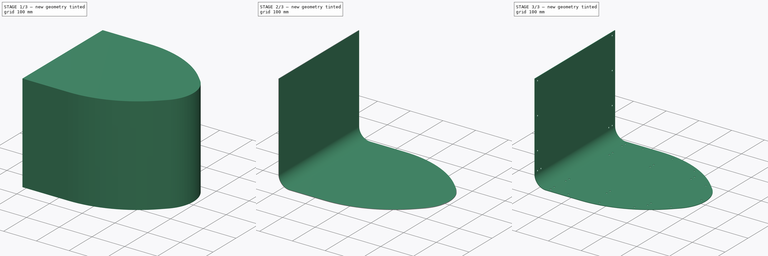
[diagram: build sequence overview — one tinted view per stage of 3, left to right]
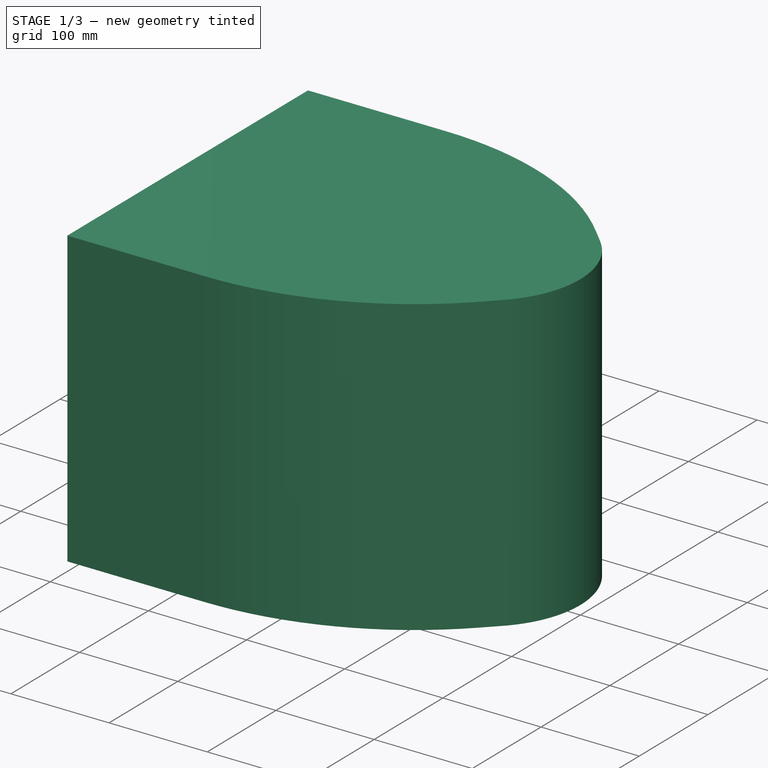
[diagram: stage 1 of 3 — iso view after this stage's code; geometry added in this stage tinted green]
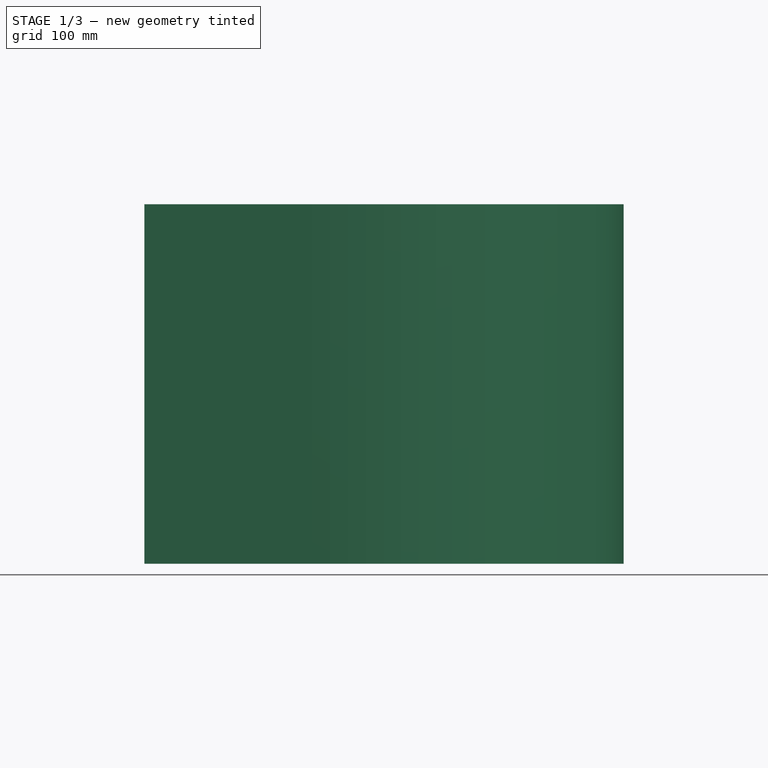
[diagram: stage 1 of 3 — front view after this stage's code; geometry added in this stage tinted green]
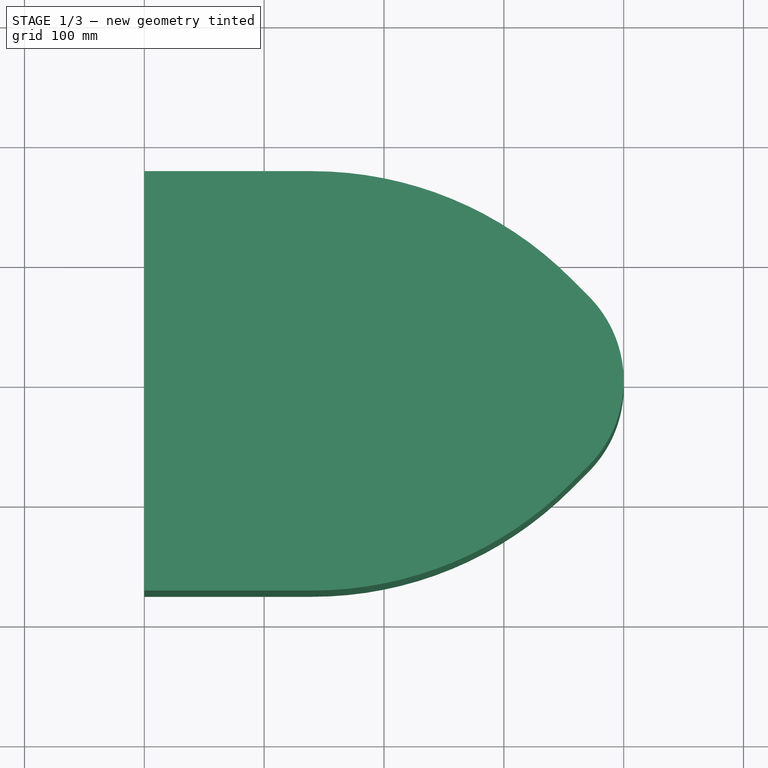
[diagram: stage 1 of 3 — top view after this stage's code; geometry added in this stage tinted green]
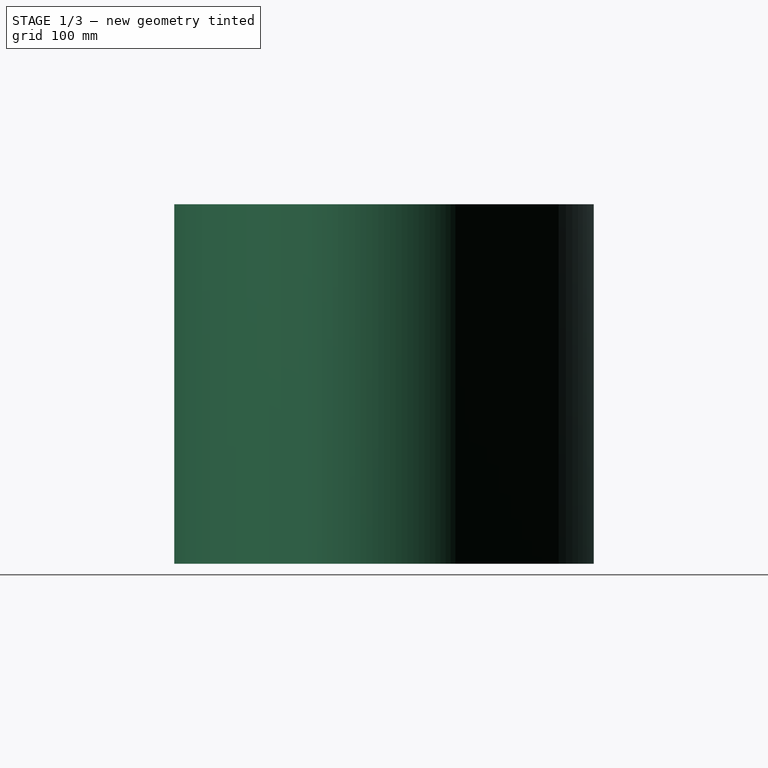
[diagram: stage 1 of 3 — right view after this stage's code; geometry added in this stage tinted green]
FCSTD DOCUMENT  (FreeCAD 0.20R29410 (Git))
Label: Tailbox Floor
License: All rights reserved
LicenseURL: http://en.wikipedia.org/wiki/All_rights_reserved
objects: Sketcher::SketchObject×3, PartDesign::Hole×2, PartDesign::Pad×1, PartDesign::Mirrored×1, TechDraw::DrawSVGTemplate×1, PartDesign::Fillet×1, PartDesign::Thickness×1, PartDesign::Body×1, TechDraw::DrawViewPart×1, TechDraw::DrawPage×1, Spreadsheet::Sheet×1
note: 15 computed .brp shape members not serialized (recipe doc carries the construction recipe); baked Part::Feature solids carry a one-line shape summary decoded from their .brp
EXTERNAL_REF file=Tailbox.FCStd obj=Spreadsheet

FEATURE [Sketcher::SketchObject] Sketch
  FullyConstrained = true
  MapMode = 5
  Support = -> [XY_Plane]
  expr: Constraints[10] = Tailbox#<<dims>>.tip_radius
  expr: Constraints[11] = Tailbox#<<dims>>.length
  expr: Constraints[13] = Tailbox#<<dims>>.taper_angle
  expr: Constraints[14] = Tailbox#<<dims>>.straight_dist
  expr: Constraints[9] = Tailbox#<<dims>>.width / 2
  sketch-geometry (6):
    g0: LineSegment StartX=355.815 StartY=85.6066 StartZ=0 EndX=370.711 EndY=70.7107 EndZ=0
    g1: ArcOfCircle CenterX=300 CenterY=0 CenterZ=0 NormalX=0 NormalY=0 NormalZ=1 AngleXU=0 Radius=100 StartAngle=0 EndAngle=0.785398
    g2: ArcOfCircle CenterX=140 CenterY=-130.208 CenterZ=0 NormalX=0 NormalY=0 NormalZ=1 AngleXU=0 Radius=305.208 StartAngle=0.785398 EndAngle=1.5708
    g3: LineSegment StartX=0 StartY=175 StartZ=0 EndX=0 EndY=0 EndZ=0
    g4: LineSegment StartX=0 StartY=0 StartZ=0 EndX=400 EndY=0 EndZ=0
    g5: LineSegment StartX=140 StartY=175 StartZ=0 EndX=0 EndY=175 EndZ=0
  constraints (17):
    c: PointOnObject(g3,g-2)
    c: PointOnObject(g1,g-1)
    c: Tangent(g1,g0) = 1.5708
    c: PointOnObject(g1,g-1)
    c: Coincident(g3,g-1)
    c: Coincident(g4,g3)
    c: Coincident(g4,g1)
    c: Horizontal(g5)
    c: Tangent(g2,g5) = -1.5708
    c: DistanceY(g5) = 175
    c: Radius(g1) = 100
    c: DistanceX(g4,g4) = 400
    c: Tangent(g0,g2) = 1.5708
    c: Angle(g0,g-1) = 0.785398
    c: DistanceX(g5,g5) = 140
    c: Coincident(g3,g5)
    c: Radius(g2) = 305.208
FEATURE [PartDesign::Pad] Pad
  AlongSketchNormal = false
  Direction = (0,0,1)
  Length = 300
  Length2 = 100
  Profile = -> Sketch
  ReferenceAxis = -> Sketch [N_Axis]
  Type = 0
  expr: Length = Tailbox#<<dims>>.height
FEATURE [PartDesign::Mirrored] Mirrored
  BaseFeature = -> Pad
  MirrorPlane = -> XZ_Plane
  Originals = -> [Pad]
  Refine = true
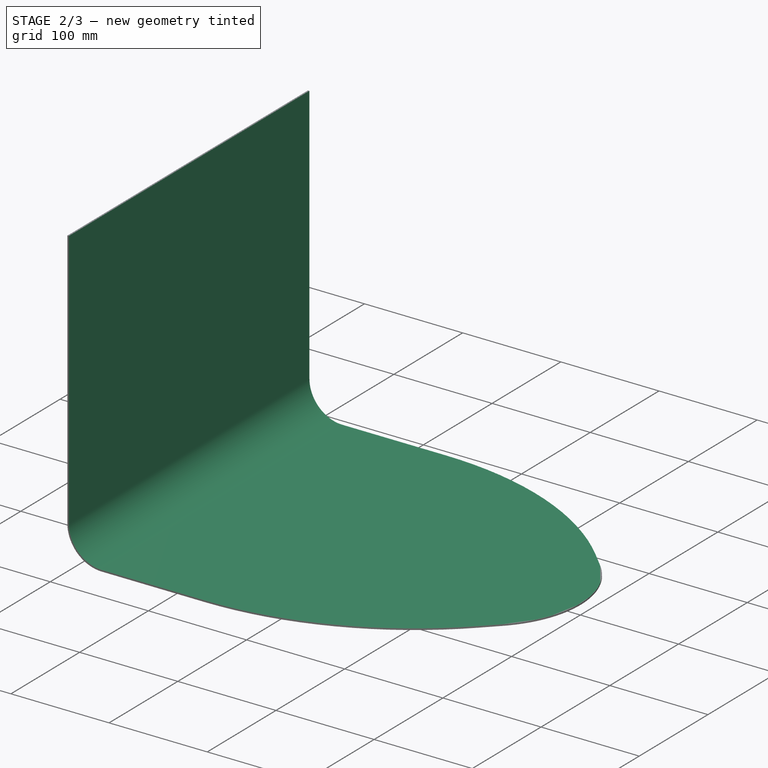
[diagram: stage 2 of 3 — iso view after this stage's code; geometry added in this stage tinted green]
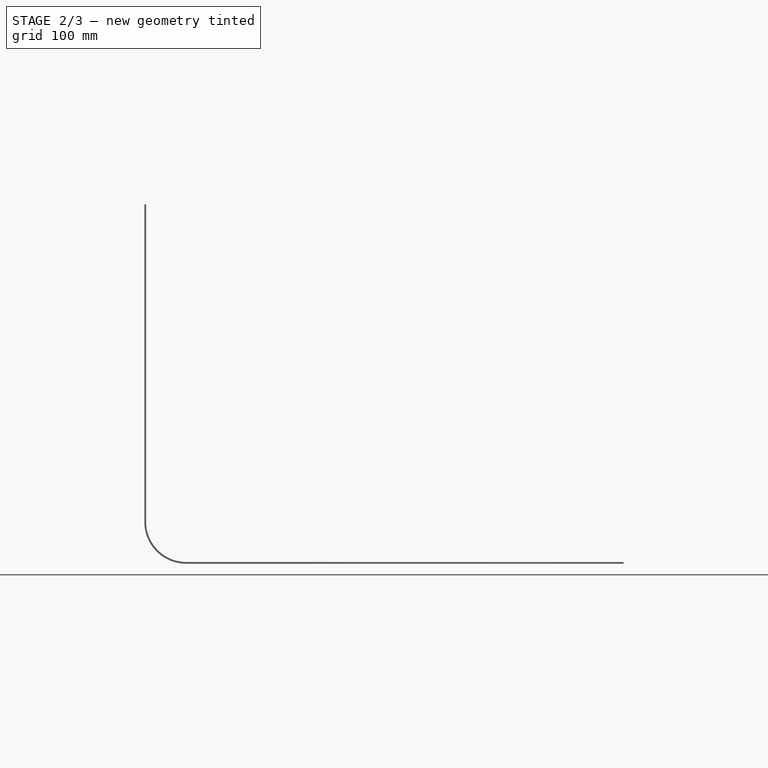
[diagram: stage 2 of 3 — front view after this stage's code; geometry added in this stage tinted green]
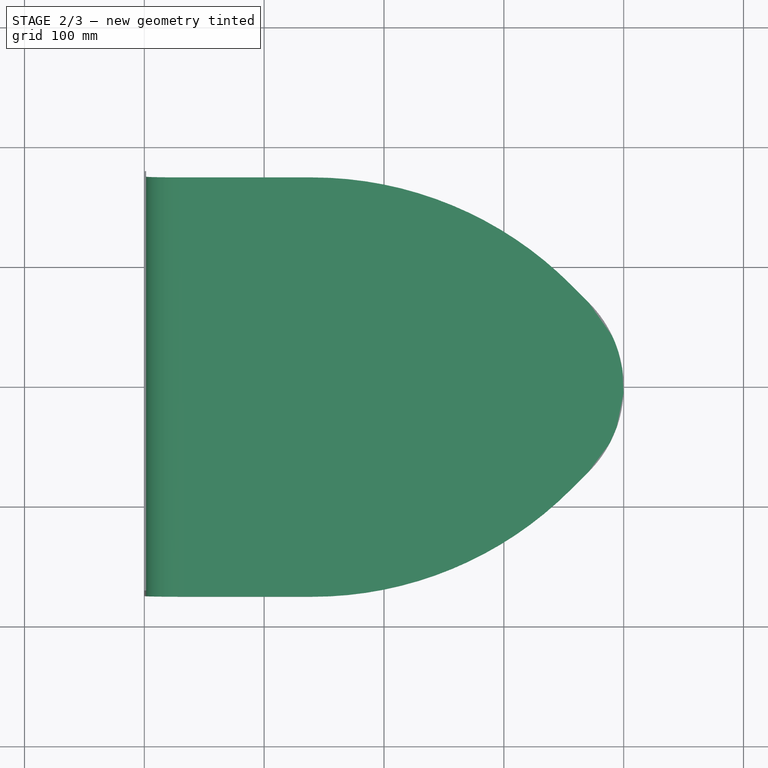
[diagram: stage 2 of 3 — top view after this stage's code; geometry added in this stage tinted green]
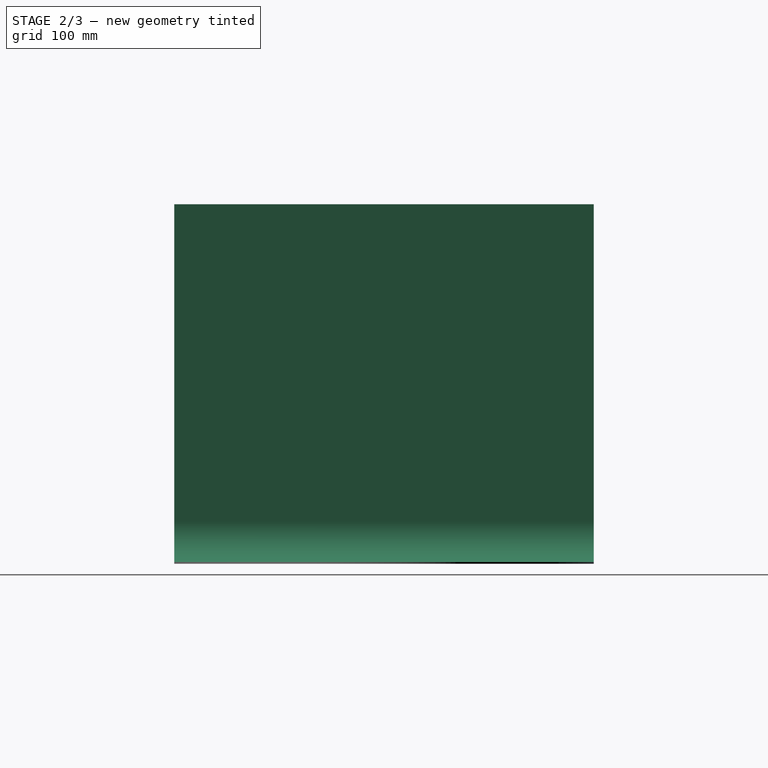
[diagram: stage 2 of 3 — right view after this stage's code; geometry added in this stage tinted green]
FEATURE [TechDraw::DrawSVGTemplate] Template
  EditableTexts = Designed_by_Name=Designed by Name; Drawing_number=Drawing number; FC-Date=Date; FC-SC=Scale; FC-SH=Sheet; FC-Title=Title; Subtitle=Subtitle; Weight=Weight
  Height = 210
  Orientation = 1
  Width = 297
FEATURE [Sketcher::SketchObject] Sketch002
  ExternalGeometry = -> [Sketch]
  FullyConstrained = false
  MapMode = 5
  Support = -> [XY_Plane]
  expr: Constraints[108] = Tailbox#<<dims>>.rack_mount_bolt_width
  expr: Constraints[109] = Tailbox#<<dims>>.rack_outer_width - Tailbox#<<dims>>.rack_tube_diameter
  expr: Constraints[110] = Tailbox#<<dims>>.rack_length
  expr: Constraints[113] = Tailbox#<<dims>>.corner_radius + 10
  expr: Constraints[41] = Tailbox#<<dims>>.bolt_inset
  expr: Constraints[51] = Tailbox#<<dims>>.corner_radius + Tailbox#<<dims>>.corner_bolt_offset + Tailbox#<<dims>>.thickness
  sketch-geometry (48):
    g0: Circle CenterX=41.5 CenterY=163 CenterZ=0 NormalX=0 NormalY=0 NormalZ=1 AngleXU=0 Radius=2.56613
    g1: Circle CenterX=41.5 CenterY=148 CenterZ=0 NormalX=0 NormalY=0 NormalZ=1 AngleXU=0 Radius=2.56613
    g2: Circle CenterX=41.5 CenterY=-148 CenterZ=0 NormalX=0 NormalY=0 NormalZ=1 AngleXU=0 Radius=2.56613
    g3: Circle CenterX=41.5 CenterY=-163 CenterZ=0 NormalX=0 NormalY=0 NormalZ=1 AngleXU=0 Radius=2.56613
    g4: LineSegment StartX=41.5 StartY=163 StartZ=0 EndX=41.5 EndY=148 EndZ=0
    g5: LineSegment StartX=41.5 StartY=-148 StartZ=0 EndX=41.5 EndY=-163 EndZ=0
    g6: Circle CenterX=95.0399 CenterY=163 CenterZ=0 NormalX=0 NormalY=0 NormalZ=1 AngleXU=0 Radius=2.56613
    g7: Circle CenterX=188.025 CenterY=159.04 CenterZ=0 NormalX=0 NormalY=0 NormalZ=1 AngleXU=0 Radius=2.56613
    g8: Circle CenterX=274.668 CenterY=130.244 CenterZ=0 NormalX=0 NormalY=0 NormalZ=1 AngleXU=0 Radius=2.56613
    g9: Circle CenterX=348.293 CenterY=76.1579 CenterZ=0 NormalX=0 NormalY=0 NormalZ=1 AngleXU=0 Radius=2.56613
    g10: LineSegment StartX=0 StartY=175 StartZ=0 EndX=95.0399 EndY=175 EndZ=0
    g11: LineSegment StartX=95.0399 StartY=175 StartZ=0 EndX=189.99 EndY=170.878 EndZ=0
    g12: LineSegment StartX=189.99 StartY=170.878 StartZ=0 EndX=280.18 EndY=140.904 EndZ=0
    g13: LineSegment StartX=280.18 StartY=140.904 StartZ=0 EndX=356.778 EndY=84.6431 EndZ=0
    g14: LineSegment StartX=356.778 StartY=84.6431 StartZ=0 EndX=400 EndY=0 EndZ=0
    g15: LineSegment StartX=95.0399 StartY=163 StartZ=0 EndX=95.0399 EndY=175 EndZ=0
    g16: LineSegment StartX=188.025 StartY=159.04 StartZ=0 EndX=189.99 EndY=170.878 EndZ=0
    g17: LineSegment StartX=274.668 StartY=130.244 StartZ=0 EndX=280.18 EndY=140.904 EndZ=0
    g18: LineSegment StartX=348.293 StartY=76.1579 StartZ=0 EndX=356.778 EndY=84.6431 EndZ=0
    g19: LineSegment StartX=189.99 StartY=170.878 StartZ=0 EndX=215.304 EndY=166.675 EndZ=0
    g20: LineSegment StartX=280.18 StartY=140.904 StartZ=0 EndX=254.943 EndY=153.952 EndZ=0
    g21: Circle CenterX=95.0399 CenterY=-163 CenterZ=0 NormalX=0 NormalY=0 NormalZ=1 AngleXU=0 Radius=2.56613
    g22: Circle CenterX=188.025 CenterY=-159.04 CenterZ=0 NormalX=0 NormalY=0 NormalZ=1 AngleXU=0 Radius=2.56613
    g23: Circle CenterX=274.668 CenterY=-130.244 CenterZ=0 NormalX=0 NormalY=0 NormalZ=1 AngleXU=0 Radius=2.56613
    g24: Circle CenterX=348.293 CenterY=-76.1579 CenterZ=0 NormalX=0 NormalY=0 NormalZ=1 AngleXU=0 Radius=2.56613
    g25: Circle CenterX=388 CenterY=0 CenterZ=0 NormalX=0 NormalY=0 NormalZ=1 AngleXU=0 Radius=2.56613
    g26: LineSegment StartX=388 StartY=0 StartZ=0 EndX=400 EndY=0 EndZ=0
    g27: LineSegment StartX=41.5 StartY=163 StartZ=0 EndX=95.0399 EndY=163 EndZ=0
    g28: Circle CenterX=45 CenterY=102.5 CenterZ=0 NormalX=0 NormalY=0 NormalZ=1 AngleXU=0 Radius=2.56613
    g29: Circle CenterX=45 CenterY=87.5 CenterZ=0 NormalX=0 NormalY=0 NormalZ=1 AngleXU=0 Radius=2.56613
    g30: Circle CenterX=45 CenterY=-87.5 CenterZ=0 NormalX=0 NormalY=0 NormalZ=1 AngleXU=0 Radius=2.56613
    g31: Circle CenterX=45 CenterY=-102.5 CenterZ=0 NormalX=0 NormalY=0 NormalZ=1 AngleXU=0 Radius=2.56613
    g32: Circle CenterX=170 CenterY=102.5 CenterZ=0 NormalX=0 NormalY=0 NormalZ=1 AngleXU=0 Radius=2.56613
    g33: Circle CenterX=170 CenterY=87.5 CenterZ=0 NormalX=0 NormalY=0 NormalZ=1 AngleXU=0 Radius=2.56613
    g34: Circle CenterX=170 CenterY=-87.5 CenterZ=0 NormalX=0 NormalY=0 NormalZ=1 AngleXU=0 Radius=2.56613
    g35: Circle CenterX=170 CenterY=-102.5 CenterZ=0 NormalX=0 NormalY=0 NormalZ=1 AngleXU=0 Radius=2.56613
    g36: Circle CenterX=295 CenterY=102.5 CenterZ=0 NormalX=0 NormalY=0 NormalZ=1 AngleXU=0 Radius=2.56613
    g37: Circle CenterX=295 CenterY=87.5 CenterZ=0 NormalX=0 NormalY=0 NormalZ=1 AngleXU=0 Radius=2.56613
    g38: Circle CenterX=295 CenterY=-87.5 CenterZ=0 NormalX=0 NormalY=0 NormalZ=1 AngleXU=0 Radius=2.56613
    g39: Circle CenterX=295 CenterY=-102.5 CenterZ=0 NormalX=0 NormalY=0 NormalZ=1 AngleXU=0 Radius=2.56613
    g40: LineSegment StartX=45 StartY=102.5 StartZ=0 EndX=45 EndY=87.5 EndZ=0
    g41: LineSegment StartX=45 StartY=-87.5 StartZ=0 EndX=45 EndY=-102.5 EndZ=0
    g42: LineSegment StartX=170 StartY=102.5 StartZ=0 EndX=170 EndY=87.5 EndZ=0
    g43: LineSegment StartX=170 StartY=-87.5 StartZ=0 EndX=170 EndY=-102.5 EndZ=0
    g44: LineSegment StartX=295 StartY=102.5 StartZ=0 EndX=295 EndY=87.5 EndZ=0
    g45: LineSegment StartX=295 StartY=-87.5 StartZ=0 EndX=295 EndY=-102.5 EndZ=0
    g46: LineSegment StartX=45 StartY=102.5 StartZ=0 EndX=170 EndY=102.5 EndZ=0
    g47: LineSegment StartX=295 StartY=102.5 StartZ=0 EndX=170 EndY=102.5 EndZ=0
  constraints (116):
    c: Vertical(g5)
    c: Vertical(g4)
    c: Coincident(g1,g4)
    c: Coincident(g0,g4)
    c: Coincident(g2,g5)
    c: Coincident(g3,g5)
    c: Symmetric(g2,g1,g-1)
    c: Equal(g4,g5)
    c: DistanceY(g5,g5) = 15
    c: Coincident(g10,g11)
    c: Coincident(g11,g12)
    c: Coincident(g12,g13)
    c: Coincident(g13,g14)
    c: Coincident(g14,g-6)
    c: Horizontal(g10)
    c: Equal(g10,g11)
    c: Equal(g11,g12)
    c: Equal(g12,g13)
    c: Equal(g13,g14)
    c: Coincident(g6,g15)
    c: Coincident(g7,g16)
    c: Coincident(g8,g17)
    c: Coincident(g9,g18)
    c: PointOnObject(g11,g-4)
    c: Coincident(g11,g16)
    c: PointOnObject(g12,g-4)
    c: Coincident(g12,g17)
    c: PointOnObject(g13,g-5)
    c: Coincident(g13,g18)
    c: Vertical(g15)
    c: Coincident(g10,g15)
    c: Tangent(g19,g-4)
    c: Coincident(g11,g19)
    c: Perpendicular(g16,g19)
    c: Tangent(g20,g-4)
    c: Coincident(g12,g20)
    c: Perpendicular(g20,g17)
    c: Perpendicular(g-5,g18)
    c: Equal(g15,g16)
    c: Equal(g16,g17)
    c: Equal(g17,g18)
    c: DistanceY(g15,g15) = 12
    c: Coincident(g10,g-3)
    c: Symmetric(g21,g6,g-1)
    c: Symmetric(g7,g22,g-1)
    c: Symmetric(g23,g8,g-1)
    c: Symmetric(g24,g9,g-1)
    c: Horizontal(g26)
    c: Coincident(g14,g26)
    c: Coincident(g25,g26)
    c: Equal(g26,g18)
    c: DistanceX(g0) = 41.5
    c: Horizontal(g27)
    c: Coincident(g6,g27)
    c: Coincident(g0,g27)
    c: Equal(g0,g1)
    c: Equal(g1,g2)
    c: Equal(g2,g3)
    c: Equal(g6,g7)
    c: Equal(g7,g8)
    c: Equal(g8,g9)
    c: Equal(g21,g22)
    c: Equal(g22,g23)
    c: Equal(g23,g24)
    c: Equal(g24,g25)
    c: Equal(g3,g6)
    c: Equal(g6,g21)
    c: Equal(g40,g41)
    c: Equal(g41,g42)
    c: Equal(g42,g43)
    c: Equal(g43,g44)
    c: Equal(g44,g45)
    c: Vertical(g42)
    c: Horizontal(g46)
    c: Coincident(g46,g42)
    c: Coincident(g46,g32)
    c: Coincident(g32,g47)
    c: Coincident(g33,g42)
    c: Coincident(g28,g40)
    c: Coincident(g29,g40)
    c: Coincident(g46,g28)
    c: Coincident(g36,g44)
    c: Coincident(g36,g47)
    c: Coincident(g37,g44)
    c: Vertical(g44)
    c: Coincident(g38,g45)
    c: Coincident(g39,g45)
    c: Coincident(g34,g43)
    c: Vertical(g43)
    c: Coincident(g35,g43)
    c: Coincident(g30,g41)
    c: Coincident(g31,g41)
    c: Symmetric(g29,g30,g-1)
    c: Symmetric(g33,g34,g-1)
    c: Symmetric(g37,g38,g-1)
    c: Horizontal(g47)
    c: Equal(g28,g29)
    c: Equal(g29,g30)
    c: Equal(g30,g31)
    c: Equal(g31,g32)
    c: Equal(g32,g33)
    c: Equal(g33,g34)
    c: Equal(g34,g35)
    c: Equal(g35,g36)
    c: Equal(g36,g37)
    c: Equal(g37,g38)
    c: Equal(g38,g39)
    c: Equal(g25,g28)
    c: DistanceY(g40,g40) = 15
    c: DistanceY(g30,g28) = 190
    c: DistanceX(g28,g36) = 250
    c: Vertical(g40)
    c: Vertical(g41)
    c: DistanceX(g29) = 45
    c: Vertical(g45)
    c: Equal(g46,g47)
FEATURE [PartDesign::Fillet] Fillet
  Base = -> Mirrored [Edge16]
  BaseFeature = -> Mirrored
  Radius = 35
  SupportTransform = false
  UseAllEdges = false
  expr: Radius = Tailbox#<<dims>>.corner_radius
FEATURE [PartDesign::Thickness] Thickness
  Base = -> Fillet [Face1,Face6,Face11,Face10,Face9,Face8,Face7,Face4]
  BaseFeature = -> Fillet
  Intersection = false
  Join = 0
  Mode = 0
  Reversed = true
  SupportTransform = false
  Value = 1.5
  expr: Value = Tailbox#<<dims>>.thickness
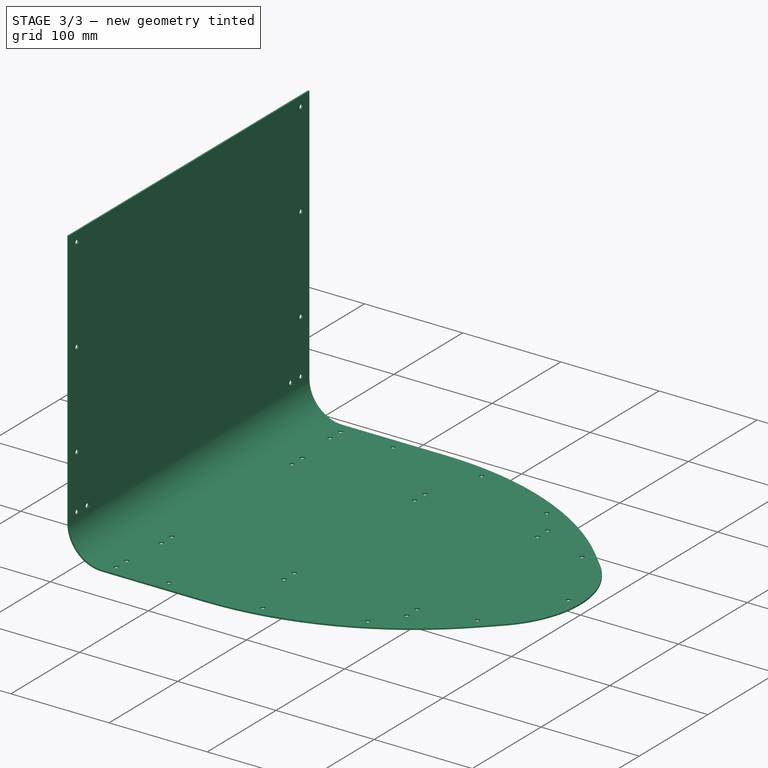
[diagram: stage 3 of 3 — iso view after this stage's code; geometry added in this stage tinted green]
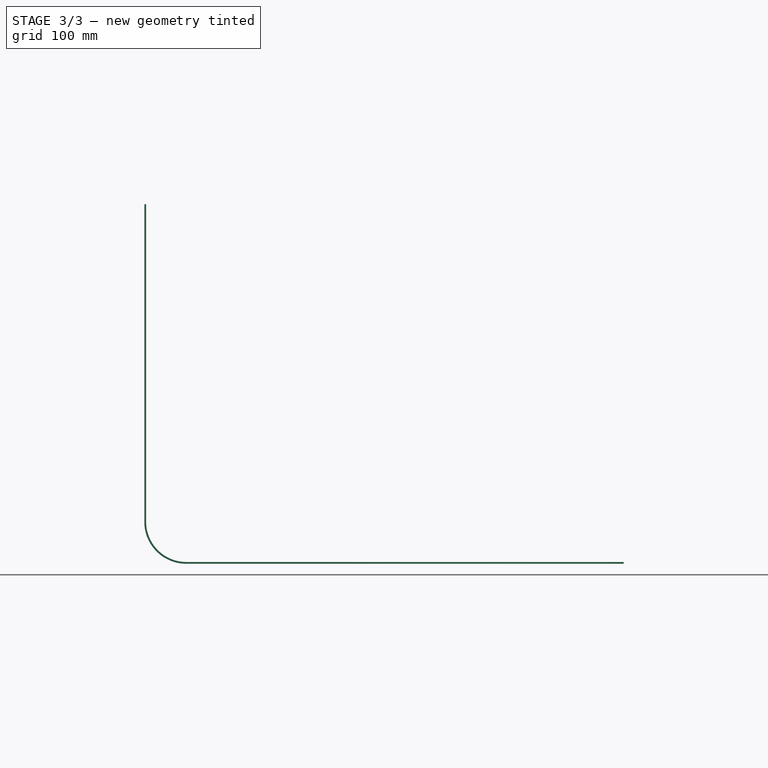
[diagram: stage 3 of 3 — front view after this stage's code; geometry added in this stage tinted green]
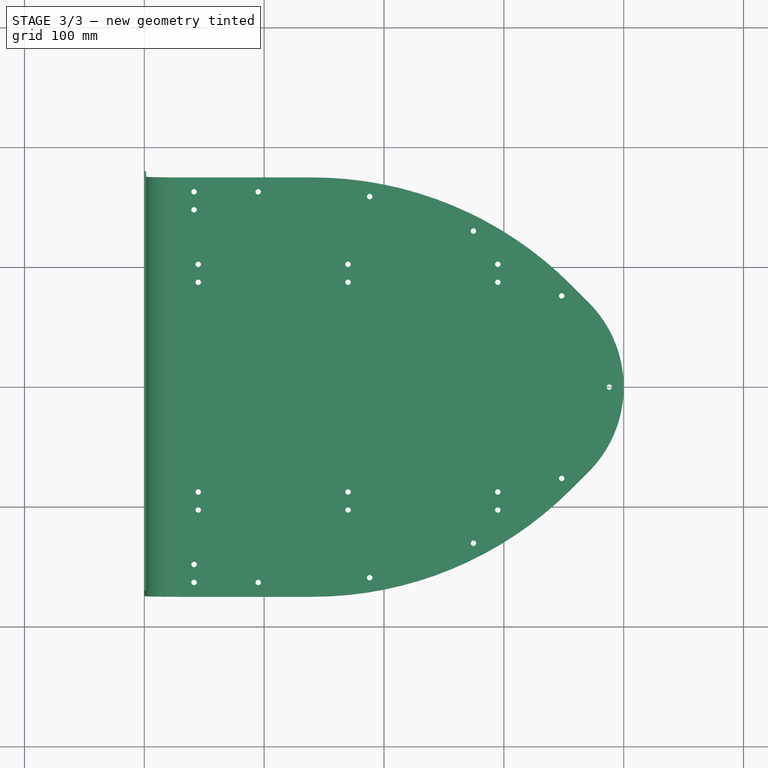
[diagram: stage 3 of 3 — top view after this stage's code; geometry added in this stage tinted green]
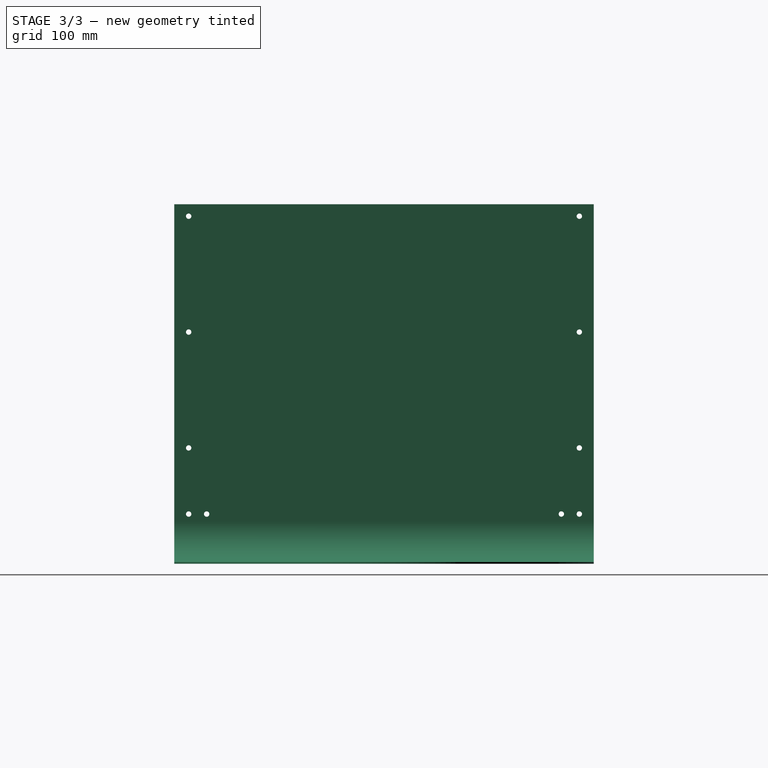
[diagram: stage 3 of 3 — right view after this stage's code; geometry added in this stage tinted green]
FEATURE [PartDesign::Hole] Hole
  BaseFeature = -> Thickness
  CustomThreadClearance = 0
  Depth = 25
  DepthType = 0
  Diameter = 4.5
  DrillForDepth = false
  DrillPoint = 1
  DrillPointAngle = 118
  HoleCutCountersinkAngle = 90
  HoleCutCustomValues = false
  HoleCutDepth = 0
  HoleCutDiameter = 6.1
  HoleCutType = 0
  ModelThread = false
  Profile = -> Sketch002
  Reversed = true
  Tapered = false
  TaperedAngle = 90
  ThreadClass = 0
  ThreadDepth = 25
  ThreadDepthType = 0
  ThreadDirection = 0
  ThreadFit = 0
  ThreadSize = 11
  ThreadType = 1
  Threaded = false
  UseCustomThreadClearance = false
FEATURE [Sketcher::SketchObject] Sketch004
  ExternalGeometry = -> [Hole]
  FullyConstrained = false
  MapMode = 5
  Placement = pos=(0,0,0) rot=(0.57735,0.57735,0.57735;2.0944rad)
  Support = -> [YZ_Plane]
  expr: Constraints[21] = Tailbox#<<dims>>.corner_radius + Tailbox#<<dims>>.corner_bolt_offset + Tailbox#<<dims>>.thickness
  expr: Constraints[23] = Tailbox#<<dims>>.bolt_inset
  sketch-geometry (16):
    g0: Circle CenterX=-163 CenterY=41.5 CenterZ=0 NormalX=0 NormalY=0 NormalZ=1 AngleXU=0 Radius=4.24495
    g1: Circle CenterX=-148 CenterY=41.5 CenterZ=0 NormalX=0 NormalY=0 NormalZ=1 AngleXU=0 Radius=4.24495
    g2: Circle CenterX=148 CenterY=41.5 CenterZ=0 NormalX=0 NormalY=0 NormalZ=1 AngleXU=0 Radius=4.24495
    g3: Circle CenterX=163 CenterY=41.5 CenterZ=0 NormalX=0 NormalY=0 NormalZ=1 AngleXU=0 Radius=4.24495
    g4: LineSegment StartX=-163 StartY=41.5 StartZ=0 EndX=-148 EndY=41.5 EndZ=0
    g5: LineSegment StartX=-148 StartY=41.5 StartZ=0 EndX=148 EndY=41.5 EndZ=0
    g6: LineSegment StartX=148 StartY=41.5 StartZ=0 EndX=163 EndY=41.5 EndZ=0
    g7: Circle CenterX=163 CenterY=96.6667 CenterZ=0 NormalX=0 NormalY=0 NormalZ=1 AngleXU=0 Radius=4.24495
    g8: Circle CenterX=163 CenterY=193.333 CenterZ=0 NormalX=0 NormalY=0 NormalZ=1 AngleXU=0 Radius=4.24495
    g9: Circle CenterX=163 CenterY=290 CenterZ=0 NormalX=0 NormalY=0 NormalZ=1 AngleXU=0 Radius=4.24495
    g10: Circle CenterX=-163 CenterY=290 CenterZ=0 NormalX=0 NormalY=0 NormalZ=1 AngleXU=0 Radius=4.24495
    g11: Circle CenterX=-163 CenterY=193.333 CenterZ=0 NormalX=0 NormalY=0 NormalZ=1 AngleXU=0 Radius=4.24495
    g12: Circle CenterX=-163 CenterY=96.6667 CenterZ=0 NormalX=0 NormalY=0 NormalZ=1 AngleXU=0 Radius=4.24495
    g13: LineSegment StartX=163 StartY=290 StartZ=0 EndX=163 EndY=193.333 EndZ=0
    g14: LineSegment StartX=163 StartY=96.6667 StartZ=0 EndX=163 EndY=193.333 EndZ=0
    g15: LineSegment StartX=163 StartY=96.6667 StartZ=0 EndX=163 EndY=0 EndZ=0
  constraints (38):
    c: Symmetric(g2,g1,g-2)
    c: Equal(g6,g4)
    c: Horizontal(g4)
    c: Horizontal(g6)
    c: Coincident(g2,g5)
    c: Coincident(g2,g6)
    c: Coincident(g3,g6)
    c: Coincident(g1,g4)
    c: Coincident(g1,g5)
    c: Coincident(g0,g4)
    c: DistanceX(g6,g6) = 15
    c: Symmetric(g9,g10,g-2)
    c: Symmetric(g8,g11,g-2)
    c: Symmetric(g7,g12,g-2)
    c: Coincident(g8,g13)
    c: Coincident(g8,g14)
    c: Vertical(g14)
    c: Vertical(g13)
    c: Coincident(g7,g14)
    c: Equal(g14,g13)
    c: Coincident(g9,g13)
    c: DistanceY(g6) = 41.5
    c: DistanceY(g13,g-3) = 10
    c: DistanceX(g13,g-3) = 12
    c: Equal(g0,g1)
    c: Equal(g1,g2)
    c: Equal(g2,g3)
    c: Equal(g7,g8)
    c: Equal(g8,g9)
    c: Equal(g9,g10)
    c: Equal(g10,g11)
    c: Equal(g11,g12)
    c: Equal(g3,g7)
    c: Vertical(g15)
    c: Coincident(g7,g15)
    c: Equal(g15,g14)
    c: PointOnObject(g15,g-1)
    c: PointOnObject(g6,g15)
FEATURE [PartDesign::Hole] Hole006
  BaseFeature = -> Hole
  CustomThreadClearance = 0
  Depth = 25
  DepthType = 0
  Diameter = 4.5
  DrillForDepth = false
  DrillPoint = 1
  DrillPointAngle = 118
  HoleCutCountersinkAngle = 90
  HoleCutCustomValues = false
  HoleCutDepth = 0
  HoleCutDiameter = 6.1
  HoleCutType = 0
  ModelThread = false
  Profile = -> Sketch004
  Reversed = true
  Tapered = false
  TaperedAngle = 90
  ThreadClass = 0
  ThreadDepth = 25
  ThreadDepthType = 0
  ThreadDirection = 0
  ThreadFit = 0
  ThreadSize = 11
  ThreadType = 1
  Threaded = false
  UseCustomThreadClearance = false
FEATURE [PartDesign::Body] Body
  Group = -> [Sketch,Pad,Mirrored,Fillet,Thickness,Sketch002,Hole,Sketch004,Hole006]
  Origin = -> Origin
  Tip = -> Hole006
FEATURE [TechDraw::DrawViewPart] View
  CoarseView = false
  Direction = (0,0,-1)
  Focus = 100
  HardHidden = false
  IsoCount = 0
  IsoHidden = false
  IsoVisible = false
  LockPosition = false
  Perspective = false
  Rotation = 0
  Scale = 0.25
  ScaleType = 0
  SeamHidden = false
  SeamVisible = true
  SmoothHidden = false
  SmoothVisible = true
  X = 140.387
  XDirection = (1,0,0)
  Y = 131.712
FEATURE [TechDraw::DrawPage] Page
  KeepUpdated = true
  NextBalloonIndex = 1
  ProjectionType = 0
  Scale = 0.25
  Template = -> Template
  Views = -> [View]
FEATURE [Spreadsheet::Sheet] _PARTINFO_  label="#PARTINFO#"
  cells = A1=IDENTNO; A2=DESCRIPTION; B2=Tailbox Floor; A3=SUPPLIER; A4=SUPP.IDENTNO; A5=SUPP.DESCRIPTION; A6=(FILENAME)
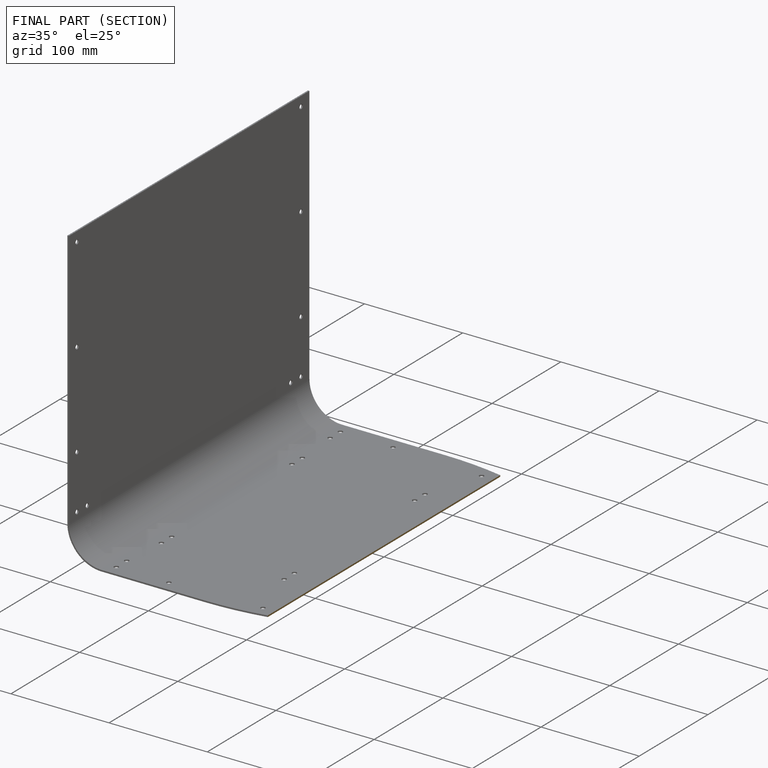
[diagram: finished part — half-section view (interior)]
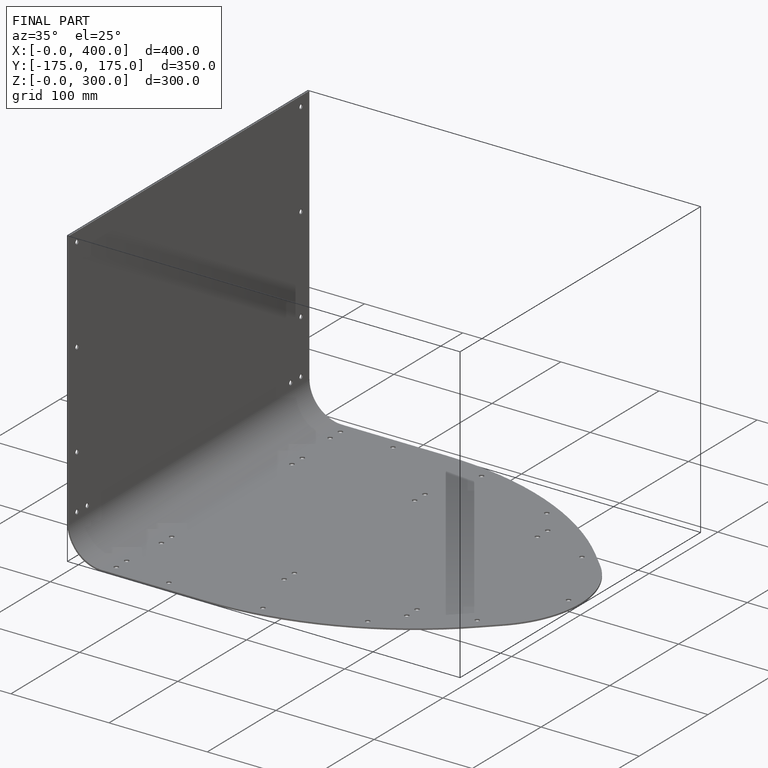
[diagram: finished part — iso view with bounding-box wireframe]
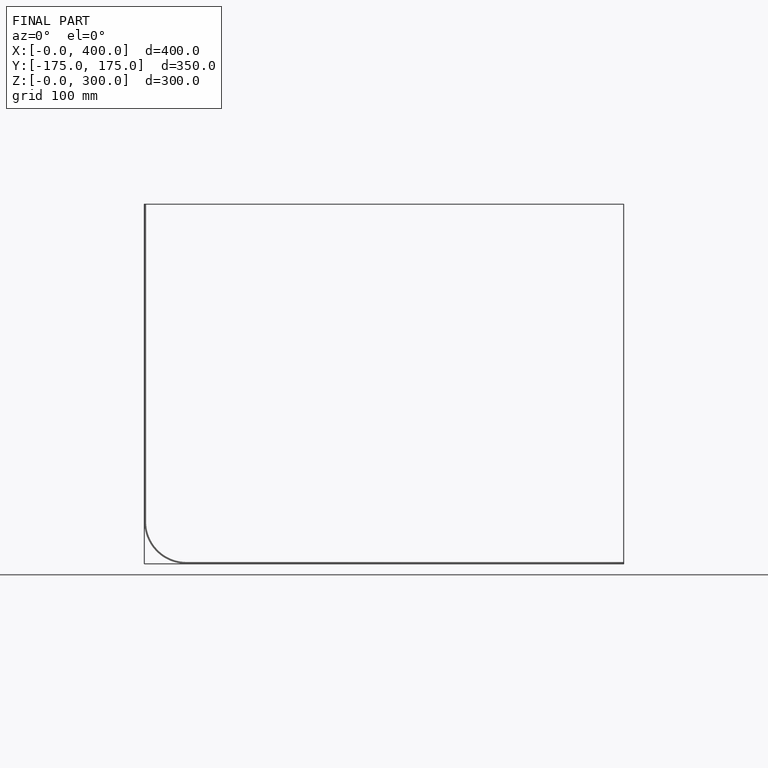
[diagram: finished part — front view with bounding-box wireframe]
